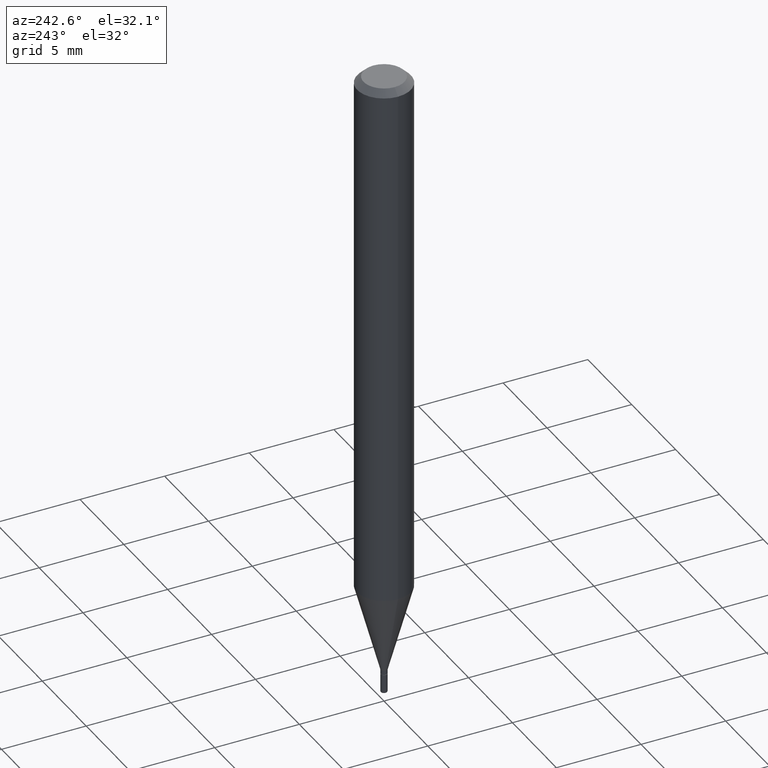
[diagram: clean part render]
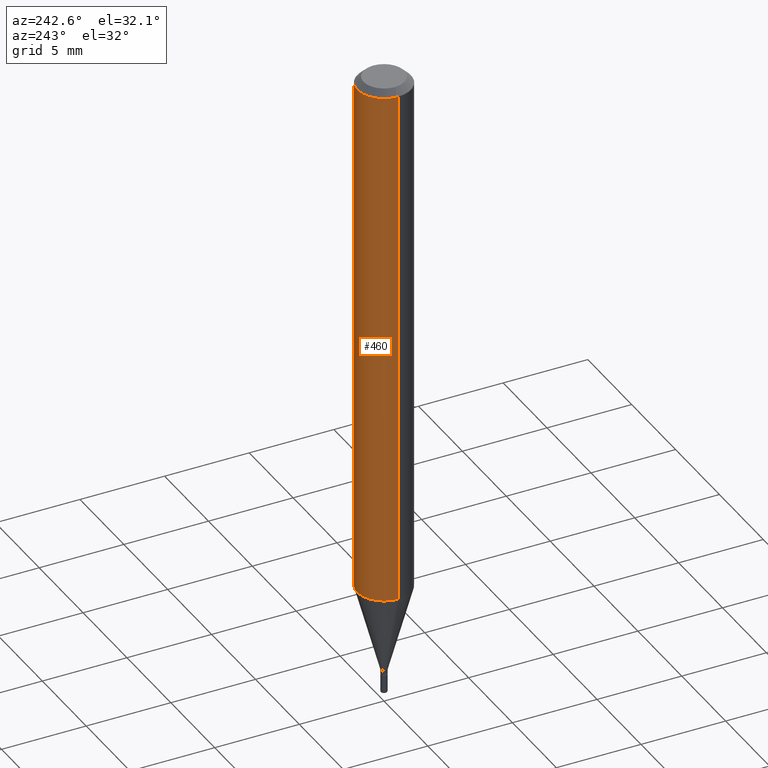
[diagram: same view with one face highlighted and labeled with its STEP entity id]
A machine part, auxiliary view. The second image highlights one B-rep face of the part: STEP entity #460.
In plain terms, the highlighted cylindrical surface (edge-blend (fillet) strip) has radius 1.5875 mm, axis along (-0, 0, 1).
Its self-contained STEP definition (entity closure, byte-faithful):
#12 = EDGE_LOOP ( 'NONE', ( #428, #108, #54, #371 ) ) ;
#14 = CARTESIAN_POINT ( 'NONE',  ( 0.06250000000000000000, -4.888073874380378612E-16, -0.01499999999999970281 ) ) ;
#44 = DIRECTION ( 'NONE',  ( -2.445468806185136597E-29, 3.491481338843145583E-15, 1.000000000000000000 ) ) ;
#47 = CARTESIAN_POINT ( 'NONE',  ( 3.031738664122096989E-29, -4.328519318365077590E-15, -1.239737205583711699 ) ) ;
#54 = ORIENTED_EDGE ( 'NONE', *, *, #403, .F. ) ;
#56 = CYLINDRICAL_SURFACE ( 'NONE', #440, 0.06250000000000000000 ) ;
#66 = CARTESIAN_POINT ( 'NONE',  ( 0.06250000000000000000, -4.764954485720470049E-15, -1.239737205583711699 ) ) ;
#80 = DIRECTION ( 'NONE',  ( 1.000000000000000000, -6.982962677686262766E-15, 0.000000000000000000 ) ) ;
#88 = DIRECTION ( 'NONE',  ( -2.445468806185136597E-29, 3.491481338843145583E-15, 1.000000000000000000 ) ) ;
#89 = CARTESIAN_POINT ( 'NONE',  ( 0.000000000000000000, 0.000000000000000000, 0.000000000000000000 ) ) ;
#92 = AXIS2_PLACEMENT_3D ( 'NONE', #139, #88, #229 ) ;
#94 = DIRECTION ( 'NONE',  ( 1.000000000000000000, -6.982962677686266711E-15, 4.876176775795935793E-29 ) ) ;
#108 = ORIENTED_EDGE ( 'NONE', *, *, #211, .T. ) ;
#139 = CARTESIAN_POINT ( 'NONE',  ( 3.668203209277632395E-31, -5.237222008264614861E-17, -0.01499999999999970281 ) ) ;
#150 = AXIS2_PLACEMENT_3D ( 'NONE', #47, #44, #80 ) ;
#176 = CARTESIAN_POINT ( 'NONE',  ( 0.06250000000000000000, -4.364351673553916694E-16, 3.047610484872459871E-30 ) ) ;
#179 = CARTESIAN_POINT ( 'NONE',  ( -0.06250000000000000000, 4.440892098500626162E-16, -3.074334431409316114E-30 ) ) ;
#182 = DIRECTION ( 'NONE',  ( -2.445468806185136597E-29, 3.491481338843145583E-15, 1.000000000000000000 ) ) ;
#198 = EDGE_CURVE ( 'NONE', #500, #291, #436, .T. ) ;
#200 = CARTESIAN_POINT ( 'NONE',  ( -0.06250000000000000000, -3.884430108515014974E-15, -1.239737205583711699 ) ) ;
#211 = EDGE_CURVE ( 'NONE', #291, #235, #442, .T. ) ;
#229 = DIRECTION ( 'NONE',  ( 1.000000000000000000, -6.982962677686266711E-15, 0.000000000000000000 ) ) ;
#235 = VERTEX_POINT ( 'NONE', #418 ) ;
#255 = EDGE_CURVE ( 'NONE', #500, #417, #380, .T. ) ;
#291 = VERTEX_POINT ( 'NONE', #200 ) ;
#294 = DIRECTION ( 'NONE',  ( -2.445468806185136877E-29, 3.491481338843145188E-15, 1.000000000000000000 ) ) ;
#295 = VECTOR ( 'NONE', #338, 39.37007874015748143 ) ;
#320 = CIRCLE ( 'NONE', #92, 0.06250000000000000000 ) ;
#338 = DIRECTION ( 'NONE',  ( -2.445468806185136877E-29, 3.491481338843145188E-15, 1.000000000000000000 ) ) ;
#371 = ORIENTED_EDGE ( 'NONE', *, *, #255, .F. ) ;
#379 = FACE_OUTER_BOUND ( 'NONE', #12, .T. ) ;
#380 = LINE ( 'NONE', #176, #295 ) ;
#403 = EDGE_CURVE ( 'NONE', #417, #235, #320, .T. ) ;
#417 = VERTEX_POINT ( 'NONE', #14 ) ;
#418 = CARTESIAN_POINT ( 'NONE',  ( -0.06250000000000000000, -1.746356559373798930E-15, -0.01499999999999970281 ) ) ;
#428 = ORIENTED_EDGE ( 'NONE', *, *, #198, .T. ) ;
#435 = VECTOR ( 'NONE', #294, 39.37007874015748143 ) ;
#436 = CIRCLE ( 'NONE', #150, 0.06250000000000000000 ) ;
#440 = AXIS2_PLACEMENT_3D ( 'NONE', #89, #182, #94 ) ;
#442 = LINE ( 'NONE', #179, #435 ) ;
#460 = ADVANCED_FACE ( 'NONE', ( #379 ), #56, .T. ) ;
#500 = VERTEX_POINT ( 'NONE', #66 ) ;